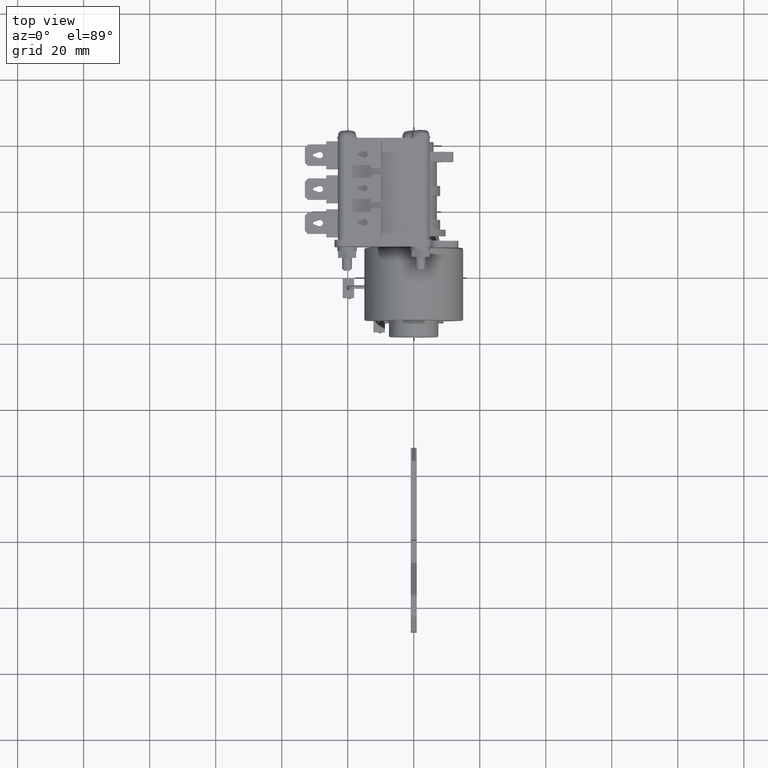
[diagram: clean part render]
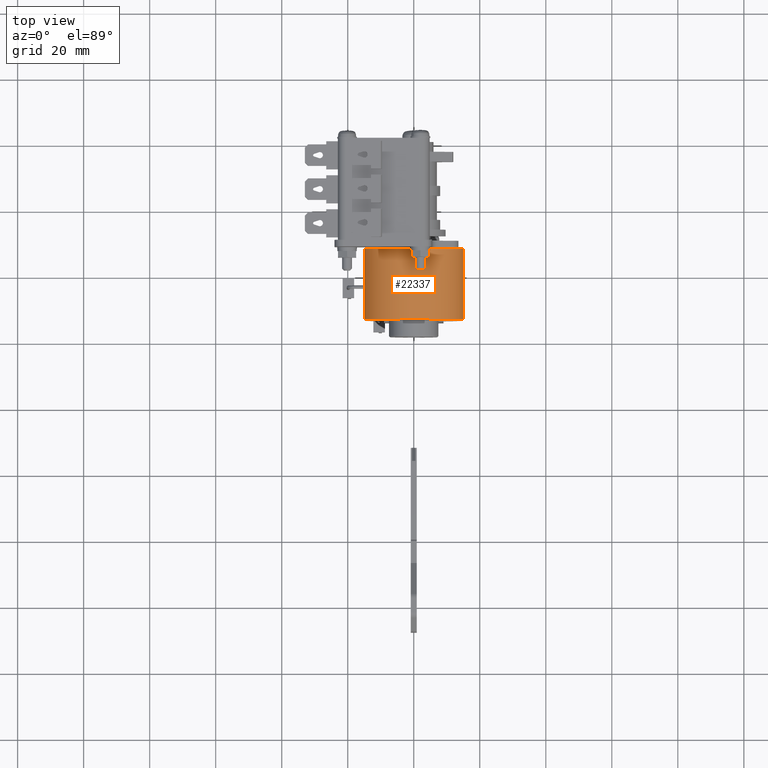
[diagram: same view with one face highlighted and labeled with its STEP entity id]
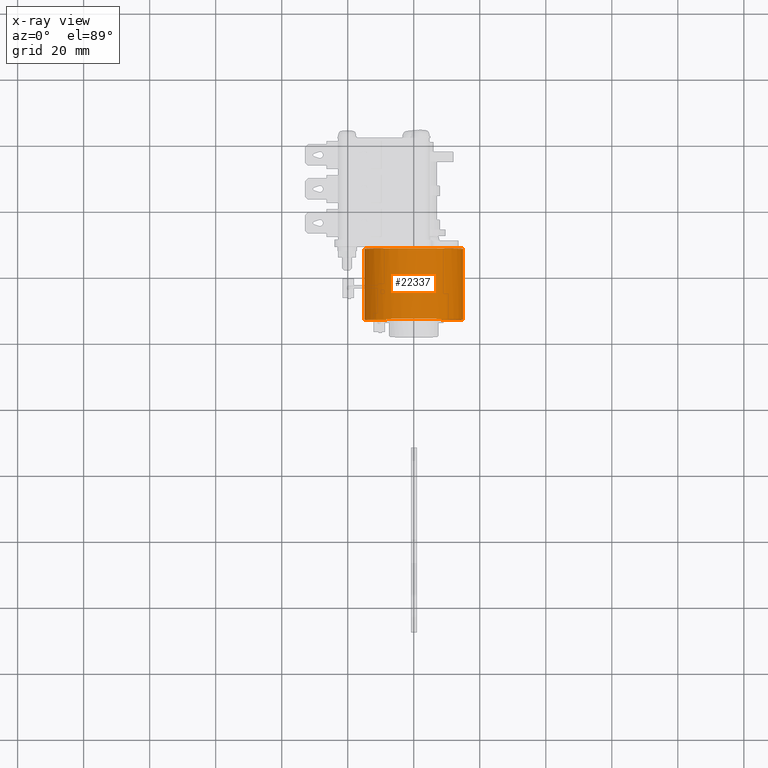
[diagram: x-ray of the same camera — body ghosted, the highlighted face saturated]
A machine part, top view. The second image highlights one B-rep face of the part: STEP entity #22337.
The next image is the same camera in x-ray: the body ghosted, the highlighted face saturated — about 0% of this face is hidden behind the body in this view.
In plain terms, the highlighted face is a freeform B-spline surface patch.
Its self-contained STEP definition (entity closure, byte-faithful):
#22046=CARTESIAN_POINT('',(26.699999999999999,-8.291561999999910,-12.500000000000000));
#22047=VERTEX_POINT('',#22046);
#22055=CARTESIAN_POINT('',(26.699999999999999,8.291562000000001,-12.500000000000000));
#22056=VERTEX_POINT('',#22055);
#22102=CARTESIAN_POINT('',(26.699999999999999,-8.291561999999910,-12.500000000000000));
#22103=CARTESIAN_POINT('',(26.700000000000010,-17.578494367339403,-6.339745942918191));
#22104=CARTESIAN_POINT('',(26.699999999999999,-14.361406613444920,4.330127028540891));
#22105=CARTESIAN_POINT('',(26.700000000000010,-11.144318859550433,15.000000000000005));
#22106=CARTESIAN_POINT('',(26.699999999999999,0.0,15.0));
#22107=CARTESIAN_POINT('',(26.700000000000010,11.144318859550376,15.000000000000005));
#22108=CARTESIAN_POINT('',(26.699999999999999,14.361406613444901,4.330127028540961));
#22109=CARTESIAN_POINT('',(26.700000000000010,17.578494367339442,-6.339745942918102));
#22110=CARTESIAN_POINT('',(26.699999999999999,8.291562000000001,-12.500000000000000));
#22118=(BOUNDED_CURVE()B_SPLINE_CURVE(2,(#22102,#22103,#22104,#22105,#22106,#22107,#22108,#22109,#22110),.UNSPECIFIED.,.F.,.U.)B_SPLINE_CURVE_WITH_KNOTS((3,2,2,2,3),(0.0,0.250000000000000,0.500000000000000,0.750000000000000,1.0),.UNSPECIFIED.)CURVE()GEOMETRIC_REPRESENTATION_ITEM()RATIONAL_B_SPLINE_CURVE((1.0,0.802706401879312,1.0,0.802706401879312,1.0,0.802706401879312,1.0,0.802706401879312,1.0))REPRESENTATION_ITEM(''));
#22119=EDGE_CURVE('',#22047,#22056,#22118,.T.);
#22149=CARTESIAN_POINT('',(5.300000000000080,-8.291561999999910,-12.500000000000000));
#22150=VERTEX_POINT('',#22149);
#22167=CARTESIAN_POINT('',(5.300000000000080,8.291562000000001,-12.500000000000000));
#22168=VERTEX_POINT('',#22167);
#22227=CARTESIAN_POINT('',(5.300000000000080,8.291562000000001,-12.500000000000000));
#22228=CARTESIAN_POINT('',(5.300000000000000,17.578494367339442,-6.339745942918102));
#22229=CARTESIAN_POINT('',(5.300000000000000,14.361406613444901,4.330127028540967));
#22230=CARTESIAN_POINT('',(5.300000000000000,11.144318859550372,15.000000000000007));
#22231=CARTESIAN_POINT('',(5.300000000000000,0.0,15.0));
#22232=CARTESIAN_POINT('',(5.300000000000000,-11.144318859550429,15.000000000000007));
#22233=CARTESIAN_POINT('',(5.300000000000000,-14.361406613444920,4.330127028540898));
#22234=CARTESIAN_POINT('',(5.300000000000000,-17.578494367339406,-6.339745942918189));
#22235=CARTESIAN_POINT('',(5.300000000000080,-8.291561999999910,-12.500000000000000));
#22243=(BOUNDED_CURVE()B_SPLINE_CURVE(2,(#22227,#22228,#22229,#22230,#22231,#22232,#22233,#22234,#22235),.UNSPECIFIED.,.F.,.U.)B_SPLINE_CURVE_WITH_KNOTS((3,2,2,2,3),(0.0,0.250000000000000,0.500000000000000,0.750000000000000,1.0),.UNSPECIFIED.)CURVE()GEOMETRIC_REPRESENTATION_ITEM()RATIONAL_B_SPLINE_CURVE((1.0,0.802706401879312,1.0,0.802706401879312,1.0,0.802706401879312,1.0,0.802706401879312,1.0))REPRESENTATION_ITEM(''));
#22244=EDGE_CURVE('',#22168,#22150,#22243,.T.);
#22294=CARTESIAN_POINT('',(26.699999999999999,-8.291561999999910,-12.500000000000000));
#22295=CARTESIAN_POINT('',(5.300000000000080,-8.291561999999910,-12.500000000000000));
#22296=QUASI_UNIFORM_CURVE('',1,(#22294,#22295),.UNSPECIFIED.,.F.,.U.);
#22297=EDGE_CURVE('',#22047,#22150,#22296,.T.);
#22300=CARTESIAN_POINT('',(26.699999999999999,8.291562000000001,-12.500000000000000));
#22301=CARTESIAN_POINT('',(5.300000000000080,8.291562000000001,-12.500000000000000));
#22302=QUASI_UNIFORM_CURVE('',1,(#22300,#22301),.UNSPECIFIED.,.F.,.U.);
#22303=EDGE_CURVE('',#22056,#22168,#22302,.T.);
#22309=CARTESIAN_POINT('',(27.235000000000010,8.182164581725942,-12.571880637261451));
#22310=CARTESIAN_POINT('',(4.751625000000001,8.182164581725942,-12.571880637261451));
#22311=CARTESIAN_POINT('',(27.235000000000010,22.815535946069623,-3.048034814727688));
#22312=CARTESIAN_POINT('',(4.751625000000001,22.815535946069623,-3.048034814727688));
#22313=CARTESIAN_POINT('',(27.235000000000010,11.195396079956501,9.983141119552222));
#22314=CARTESIAN_POINT('',(4.751625000000001,11.195396079956501,9.983141119552222));
#22315=CARTESIAN_POINT('',(27.235000000000010,-0.424743786156625,23.014317053832137));
#22316=CARTESIAN_POINT('',(4.751625000000001,-0.424743786156625,23.014317053832137));
#22317=CARTESIAN_POINT('',(27.235000000000010,-11.556137046172569,9.563247177087792));
#22318=CARTESIAN_POINT('',(4.751625000000001,-11.556137046172569,9.563247177087792));
#22319=CARTESIAN_POINT('',(27.235000000000010,-22.687530306188513,-3.887822699656546));
#22320=CARTESIAN_POINT('',(4.751625000000001,-22.687530306188513,-3.887822699656546));
#22321=CARTESIAN_POINT('',(27.235000000000010,-7.712706596646200,-12.865230544146881));
#22322=CARTESIAN_POINT('',(4.751625000000001,-7.712706596646200,-12.865230544146881));
#22330=(BOUNDED_SURFACE()B_SPLINE_SURFACE(1,2,((#22309,#22311,#22313,#22315,#22317,#22319,#22321),(#22310,#22312,#22314,#22316,#22318,#22320,#22322)),.UNSPECIFIED.,.F.,.F.,.U.)B_SPLINE_SURFACE_WITH_KNOTS((2,2),(3,2,2,3),(0.0,22.483375000000009),(0.0,27.554636765284819,55.109273530569638,82.663910295854464),.UNSPECIFIED.)GEOMETRIC_REPRESENTATION_ITEM()RATIONAL_B_SPLINE_SURFACE(((1.0,0.651657228821455,1.0,0.651657228821455,1.0,0.651657228821455,1.0),(1.0,0.651657228821455,1.0,0.651657228821455,1.0,0.651657228821455,1.0)))REPRESENTATION_ITEM('')SURFACE());
#22331=ORIENTED_EDGE('',*,*,#22303,.T.);
#22332=ORIENTED_EDGE('',*,*,#22244,.T.);
#22333=ORIENTED_EDGE('',*,*,#22297,.F.);
#22334=ORIENTED_EDGE('',*,*,#22119,.T.);
#22335=EDGE_LOOP('',(#22331,#22332,#22333,#22334));
#22336=FACE_OUTER_BOUND('',#22335,.T.);
#22337=ADVANCED_FACE('',(#22336),#22330,.T.);